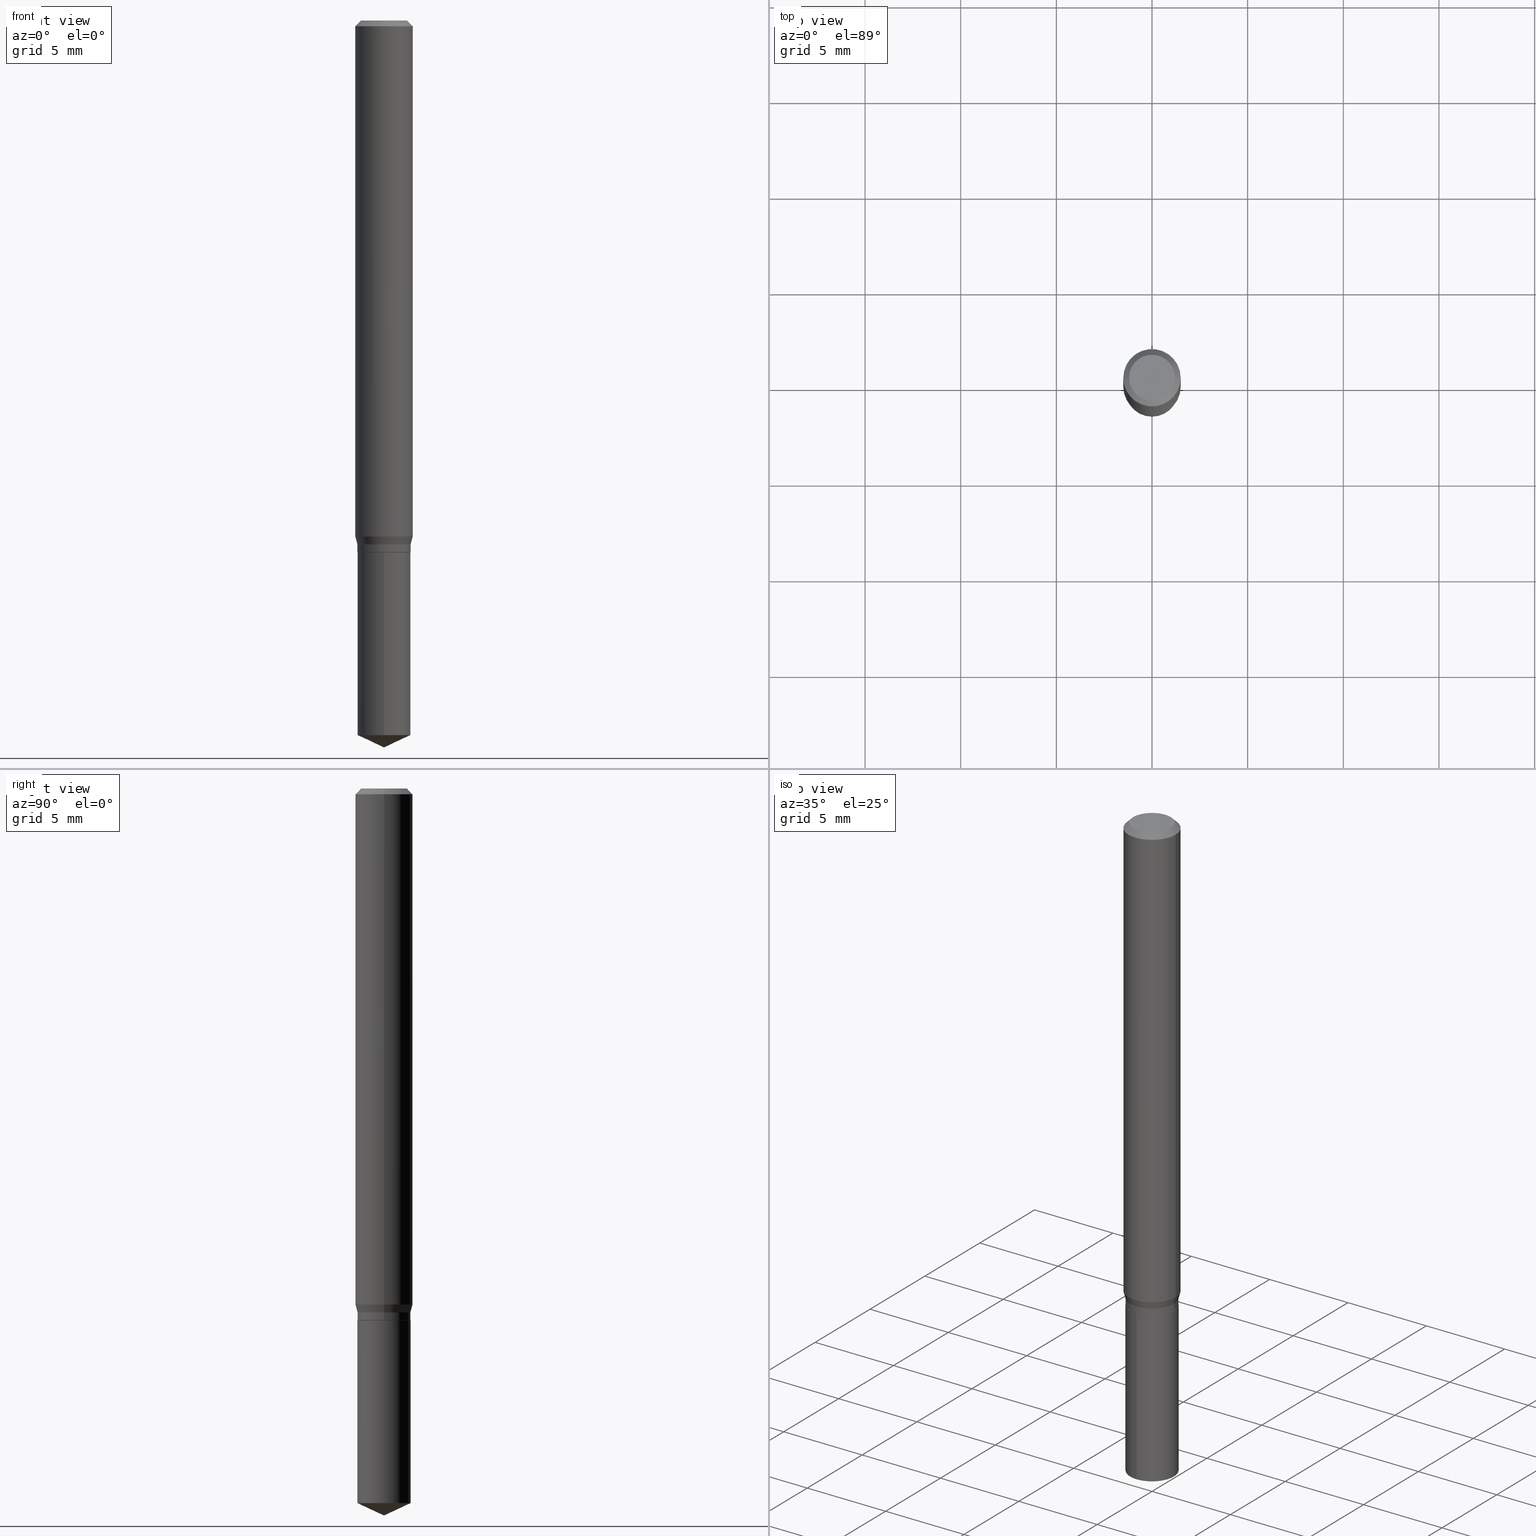
[diagram: canonical four-view strip — front | top / right | iso, engineering-drawing reading convention]
A machine part, canonical four-view strip (front | top / right | iso — engineering-drawing reading convention). The complete STEP part file that produces these views, byte-faithful:
ISO-10303-21;
HEADER;
FILE_DESCRIPTION (( 'STEP AP203' ),
    '1' );
FILE_NAME ('07694.STEP',
    '2024-04-24T01:11:04',
    ( '' ),
    ( '' ),
    'SwSTEP 2.0',
    'SolidWorks 2023',
    '' );
FILE_SCHEMA (( 'CONFIG_CONTROL_DESIGN' ));
ENDSEC;

DATA;
#1 = APPLICATION_PROTOCOL_DEFINITION ( 'international standard', 'config_control_design', 1994, #245 ) ;
#2 = VECTOR ( 'NONE', #459, 39.37007874015748143 ) ;
#3 = AXIS2_PLACEMENT_3D ( 'NONE', #294, #446, #60 ) ;
#4 = CONICAL_SURFACE ( 'NONE', #452, 0.05419999999999999818, 0.7853981633975507526 ) ;
#5 = CARTESIAN_POINT ( 'NONE',  ( 0.000000000000000000, 0.000000000000000000, 0.000000000000000000 ) ) ;
#6 = EDGE_CURVE ( 'NONE', #477, #176, #334, .T. ) ;
#7 = ORIENTED_EDGE ( 'NONE', *, *, #341, .F. ) ;
#8 = PERSON_AND_ORGANIZATION ( #411, #58 ) ;
#9 = DIRECTION ( 'NONE',  ( -0.7071067811865453523, 2.468850131082234184E-15, -0.7071067811865496822 ) ) ;
#10 = EDGE_LOOP ( 'NONE', ( #20, #67, #137, #292 ) ) ;
#11 = APPROVAL ( #112, 'UNSPECIFIED' ) ;
#12 = MANIFOLD_SOLID_BREP ( 'Body-Move/Copy2[1]', #301 ) ;
#13 = DIRECTION ( 'NONE',  ( -6.982962677686266711E-15, -1.000000000000000000, 3.520397390770459392E-15 ) ) ;
#14 = ORIENTED_EDGE ( 'NONE', *, *, #352, .F. ) ;
#15 = SECURITY_CLASSIFICATION_LEVEL ( 'unclassified' ) ;
#16 = EDGE_CURVE ( 'NONE', #114, #124, #158, .T. ) ;
#17 = AXIS2_PLACEMENT_3D ( 'NONE', #175, #34, #476 ) ;
#18 = CARTESIAN_POINT ( 'NONE',  ( 3.886668764608105865E-16, 0.05469999999999484996, -1.470592971098921842 ) ) ;
#19 = LOCAL_TIME ( 21, 11, 4.000000000000000000, #309 ) ;
#20 = ORIENTED_EDGE ( 'NONE', *, *, #115, .T. ) ;
#21 = ADVANCED_FACE ( 'NONE', ( #84 ), #81, .T. ) ;
#22 = APPROVAL ( #464, 'UNSPECIFIED' ) ;
#23 = CIRCLE ( 'NONE', #303, 0.05469999999999999862 ) ;
#24 = FACE_OUTER_BOUND ( 'NONE', #238, .T. ) ;
#25 = EDGE_CURVE ( 'NONE', #106, #99, #50, .T. ) ;
#26 = CIRCLE ( 'NONE', #111, 0.04724000000000000421 ) ;
#27 = CARTESIAN_POINT ( 'NONE',  ( 2.888098660104664204E-31, -4.123439461173780263E-17, -0.01181000000000007218 ) ) ;
#28 = CONICAL_SURFACE ( 'NONE', #95, 0.05419999999999999818, 0.7853981633975507526 ) ;
#29 = CARTESIAN_POINT ( 'NONE',  ( 2.676565608369631794E-29, -3.821426325363822773E-15, -1.094499999999999806 ) ) ;
#30 = ORIENTED_EDGE ( 'NONE', *, *, #16, .F. ) ;
#31 = FACE_OUTER_BOUND ( 'NONE', #183, .T. ) ;
#32 = ADVANCED_FACE ( 'NONE', ( #194 ), #381, .T. ) ;
#33 = ORIENTED_EDGE ( 'NONE', *, *, #470, .T. ) ;
#34 = DIRECTION ( 'NONE',  ( -2.445458899330790108E-29, 3.491495526022433205E-15, 1.000000000000000000 ) ) ;
#35 = ADVANCED_FACE ( 'NONE', ( #59 ), #244, .F. ) ;
#36 = DATE_TIME_ROLE ( 'classification_date' ) ;
#37 = LINE ( 'NONE', #298, #210 ) ;
#38 = EDGE_LOOP ( 'NONE', ( #448, #463, #279, #272 ) ) ;
#39 = LINE ( 'NONE', #388, #180 ) ;
#40 = ORIENTED_EDGE ( 'NONE', *, *, #103, .F. ) ;
#41 = COORDINATED_UNIVERSAL_TIME_OFFSET ( 5, 0, .BEHIND. ) ;
#42 = CARTESIAN_POINT ( 'NONE',  ( 3.886668764608106358E-16, 0.05469999999999616835, -1.094500000000000028 ) ) ;
#43 = ORIENTED_EDGE ( 'NONE', *, *, #45, .T. ) ;
#44 = VECTOR ( 'NONE', #398, 39.37007874015748143 ) ;
#45 = EDGE_CURVE ( 'NONE', #176, #106, #169, .T. ) ;
#46 = CARTESIAN_POINT ( 'NONE',  ( -0.05419999999999999818, -3.436312162581847894E-15, -1.094499999999999806 ) ) ;
#47 = EDGE_LOOP ( 'NONE', ( #77, #339, #429, #161 ) ) ;
#48 = DATE_AND_TIME ( #109, #252 ) ;
#49 = DIRECTION ( 'NONE',  ( -2.445458899330790108E-29, 3.491495526022433599E-15, 1.000000000000000000 ) ) ;
#50 = LINE ( 'NONE', #120, #70 ) ;
#51 = PERSON_AND_ORGANIZATION ( #411, #58 ) ;
#52 = CARTESIAN_POINT ( 'NONE',  ( 3.658672935554494692E-29, -5.223595400746700193E-15, -1.496099999999999985 ) ) ;
#53 = ORIENTED_EDGE ( 'NONE', *, *, #402, .T. ) ;
#54 = CALENDAR_DATE ( 2024, 23, 4 ) ;
#55 = EDGE_CURVE ( 'NONE', #373, #351, #440, .T. ) ;
#56 = AXIS2_PLACEMENT_3D ( 'NONE', #443, #100, #404 ) ;
#57 = CONICAL_SURFACE ( 'NONE', #397, 0.05904999999999999832, 0.7853981633974452814 ) ;
#58 = ORGANIZATION ( 'UNSPECIFIED', 'UNSPECIFIED', '' ) ;
#59 = FACE_OUTER_BOUND ( 'NONE', #313, .T. ) ;
#60 = DIRECTION ( 'NONE',  ( 1.000000000000000000, -6.982962677686265133E-15, 0.000000000000000000 ) ) ;
#61 = CARTESIAN_POINT ( 'NONE',  ( 2.636459919948195417E-29, -3.764166031406795090E-15, -1.078099999999999836 ) ) ;
#62 = CONICAL_SURFACE ( 'NONE', #230, 84.42940631927420725, 1.134464013796315340 ) ;
#63 = VERTEX_POINT ( 'NONE', #132 ) ;
#64 = CARTESIAN_POINT ( 'NONE',  ( 0.05469999999999999862, -4.201648643163839661E-15, -1.093999999999999861 ) ) ;
#65 = ORIENTED_EDGE ( 'NONE', *, *, #130, .F. ) ;
#66 = CARTESIAN_POINT ( 'NONE',  ( -0.05469999999999999862, 3.886668764607747919E-16, -2.690657494369433708E-30 ) ) ;
#67 = ORIENTED_EDGE ( 'NONE', *, *, #55, .T. ) ;
#68 = CARTESIAN_POINT ( 'NONE',  ( 0.000000000000000000, 0.000000000000000000, 0.000000000000000000 ) ) ;
#69 = ORIENTED_EDGE ( 'NONE', *, *, #280, .F. ) ;
#70 = VECTOR ( 'NONE', #224, 39.37007874015748143 ) ;
#71 =( CONVERSION_BASED_UNIT ( 'INCH', #261 ) LENGTH_UNIT ( ) NAMED_UNIT ( #379 ) );
#72 = CARTESIAN_POINT ( 'NONE',  ( 8.265746106709734507E-48, -1.180129479067563789E-33, -3.380025165646692144E-19 ) ) ;
#73 = PERSON_AND_ORGANIZATION_ROLE ( 'classification_officer' ) ;
#74 = EDGE_CURVE ( 'NONE', #460, #490, #433, .T. ) ;
#75 = PERSON_AND_ORGANIZATION ( #411, #58 ) ;
#76 = LINE ( 'NONE', #157, #347 ) ;
#77 = ORIENTED_EDGE ( 'NONE', *, *, #484, .F. ) ;
#78 = PERSON_AND_ORGANIZATION_ROLE ( 'design_owner' ) ;
#79 = EDGE_CURVE ( 'NONE', #289, #358, #394, .T. ) ;
#80 = DIRECTION ( 'NONE',  ( -2.445468806185136597E-29, 3.491481338843145583E-15, 1.000000000000000000 ) ) ;
#81 = CYLINDRICAL_SURFACE ( 'NONE', #284, 0.05469999999999999862 ) ;
#82 = VECTOR ( 'NONE', #322, 39.37007874015748143 ) ;
#83 = CARTESIAN_POINT ( 'NONE',  ( -3.819680584694119646E-16, -0.05470000000000382195, -1.094499999999999806 ) ) ;
#84 = FACE_OUTER_BOUND ( 'NONE', #108, .T. ) ;
#85 = PERSON_AND_ORGANIZATION_ROLE ( 'creator' ) ;
#86 = LINE ( 'NONE', #46, #2 ) ;
#87 = ADVANCED_FACE ( 'NONE', ( #24 ), #473, .F. ) ;
#88 = PERSON_AND_ORGANIZATION_ROLE ( 'creator' ) ;
#89 = ORIENTED_EDGE ( 'NONE', *, *, #25, .F. ) ;
#90 = CONICAL_SURFACE ( 'NONE', #401, 0.05469999999999999862, 0.2617993877991506291 ) ;
#91 = PRODUCT_DEFINITION_FORMATION_WITH_SPECIFIED_SOURCE ( 'ANY', '', #155, .NOT_KNOWN. ) ;
#92 = CARTESIAN_POINT ( 'NONE',  ( 4.602682922000797681E-29, -1.063116704454656126E-15, -1.094499999999999806 ) ) ;
#93 = CARTESIAN_POINT ( 'NONE',  ( -0.05419999999999999818, -3.433662935407737087E-15, -1.094499999999999806 ) ) ;
#94 = CARTESIAN_POINT ( 'NONE',  ( 2.676565608369631794E-29, -3.821426325363822773E-15, -1.094499999999999806 ) ) ;
#95 = AXIS2_PLACEMENT_3D ( 'NONE', #336, #409, #479 ) ;
#96 = CARTESIAN_POINT ( 'NONE',  ( 0.05469999999999999862, -3.819680584694387859E-16, 2.667268696360376954E-30 ) ) ;
#97 = LOCAL_TIME ( 21, 11, 4.000000000000000000, #118 ) ;
#98 = FACE_OUTER_BOUND ( 'NONE', #405, .T. ) ;
#99 = VERTEX_POINT ( 'NONE', #287 ) ;
#100 = DIRECTION ( 'NONE',  ( -2.445458899330790108E-29, 3.491495526022433205E-15, 1.000000000000000000 ) ) ;
#101 = CIRCLE ( 'NONE', #438, 0.05469999999999999862 ) ;
#102 = ORIENTED_EDGE ( 'NONE', *, *, #420, .T. ) ;
#103 = EDGE_CURVE ( 'NONE', #176, #477, #101, .T. ) ;
#104 = CARTESIAN_POINT ( 'NONE',  ( 2.888098660104664204E-31, -4.123439461173780263E-17, -0.01181000000000007218 ) ) ;
#105 = CARTESIAN_POINT ( 'NONE',  ( 0.05419999999999999818, -4.199902902494418158E-15, -1.094499999999999806 ) ) ;
#106 = VERTEX_POINT ( 'NONE', #177 ) ;
#107 = DIRECTION ( 'NONE',  ( -2.445468806185136597E-29, 3.491481338843145583E-15, 1.000000000000000000 ) ) ;
#108 = EDGE_LOOP ( 'NONE', ( #232, #392, #454, #221 ) ) ;
#109 = CALENDAR_DATE ( 2024, 23, 4 ) ;
#110 = AXIS2_PLACEMENT_3D ( 'NONE', #92, #323, #203 ) ;
#111 = AXIS2_PLACEMENT_3D ( 'NONE', #72, #154, #113 ) ;
#112 = APPROVAL_STATUS ( 'not_yet_approved' ) ;
#113 = DIRECTION ( 'NONE',  ( 1.000000000000000000, -6.982962677686266711E-15, 4.876185090822587894E-29 ) ) ;
#114 = VERTEX_POINT ( 'NONE', #248 ) ;
#115 = EDGE_CURVE ( 'NONE', #99, #373, #172, .T. ) ;
#116 = CARTESIAN_POINT ( 'NONE',  ( -0.05904999999999999832, -1.454783638536150538E-15, -0.01181000000000007218 ) ) ;
#117 = DIRECTION ( 'NONE',  ( -2.445468806185136597E-29, 3.491481338843145583E-15, 1.000000000000000000 ) ) ;
#118 = COORDINATED_UNIVERSAL_TIME_OFFSET ( 5, 0, .BEHIND. ) ;
#119 = FACE_OUTER_BOUND ( 'NONE', #343, .T. ) ;
#120 = CARTESIAN_POINT ( 'NONE',  ( 0.05469999999999999862, -4.146134089876233481E-15, -1.078099999999999836 ) ) ;
#121 = APPROVAL_DATE_TIME ( #425, #290 ) ;
#122 = VECTOR ( 'NONE', #231, 39.37007874015748143 ) ;
#123 = DIRECTION ( 'NONE',  ( -2.445458899330790108E-29, 3.491495526022433205E-15, 1.000000000000000000 ) ) ;
#124 = VERTEX_POINT ( 'NONE', #258 ) ;
#125 = PERSON_AND_ORGANIZATION_ROLE ( 'design_supplier' ) ;
#126 = CARTESIAN_POINT ( 'NONE',  ( 2.676565608369631794E-29, -3.821426325363822773E-15, -1.094499999999999806 ) ) ;
#127 = CIRCLE ( 'NONE', #273, 0.05419999999999999818 ) ;
#128 = CARTESIAN_POINT ( 'NONE',  ( -0.05469999999999999862, -3.403256431589823191E-15, -1.093999999999999861 ) ) ;
#129 = APPROVAL_PERSON_ORGANIZATION ( #75, #11, #406 ) ;
#130 = EDGE_CURVE ( 'NONE', #442, #408, #421, .T. ) ;
#131 = CARTESIAN_POINT ( 'NONE',  ( 8.265746106709734507E-48, -1.180129479067563789E-33, -3.380025165646692144E-19 ) ) ;
#132 = CARTESIAN_POINT ( 'NONE',  ( -0.05469999999999999862, -3.403256431589823191E-15, -1.078099999999999836 ) ) ;
#133 = APPLICATION_CONTEXT ( 'configuration controlled 3d designs of mechanical parts and assemblies' ) ;
#134 = CIRCLE ( 'NONE', #3, 0.05905000000000013016 ) ;
#135 = DIRECTION ( 'NONE',  ( -2.445468806185136597E-29, 3.491481338843145583E-15, 1.000000000000000000 ) ) ;
#136 = DIRECTION ( 'NONE',  ( -2.445458899330790108E-29, 3.491495526022433205E-15, 1.000000000000000000 ) ) ;
#137 = ORIENTED_EDGE ( 'NONE', *, *, #324, .F. ) ;
#138 = ADVANCED_BREP_SHAPE_REPRESENTATION ( '07694', ( #12, #483, #431 ), #462 ) ;
#139 = FACE_OUTER_BOUND ( 'NONE', #457, .T. ) ;
#140 = ORIENTED_EDGE ( 'NONE', *, *, #435, .T. ) ;
#141 = ADVANCED_FACE ( 'NONE', ( #139 ), #486, .F. ) ;
#142 = DIRECTION ( 'NONE',  ( 1.000000000000000000, -6.982962677686269866E-15, 0.000000000000000000 ) ) ;
#143 = CIRCLE ( 'NONE', #152, 0.05904999999999999832 ) ;
#144 = EDGE_LOOP ( 'NONE', ( #393, #332, #43, #149 ) ) ;
#145 = DIRECTION ( 'NONE',  ( 1.000000000000000000, -6.982962677686269866E-15, 0.000000000000000000 ) ) ;
#146 = ORIENTED_EDGE ( 'NONE', *, *, #74, .T. ) ;
#147 = ADVANCED_FACE ( 'NONE', ( #338 ), #90, .T. ) ;
#148 = CARTESIAN_POINT ( 'NONE',  ( 2.636459919948195417E-29, -3.764166031406795090E-15, -1.078099999999999836 ) ) ;
#149 = ORIENTED_EDGE ( 'NONE', *, *, #226, .F. ) ;
#150 = DIRECTION ( 'NONE',  ( -2.445468806185136597E-29, 3.491481338843145583E-15, 1.000000000000000000 ) ) ;
#151 = ORIENTED_EDGE ( 'NONE', *, *, #280, .T. ) ;
#152 = AXIS2_PLACEMENT_3D ( 'NONE', #27, #173, #328 ) ;
#153 = CC_DESIGN_APPROVAL ( #11, ( #386 ) ) ;
#154 = DIRECTION ( 'NONE',  ( -2.445468806185136597E-29, 3.491481338843145583E-15, 1.000000000000000000 ) ) ;
#155 = PRODUCT ( '07694', '07694', '', ( #390 ) ) ;
#156 = DIRECTION ( 'NONE',  ( -2.445468806185136597E-29, 3.491481338843145583E-15, 1.000000000000000000 ) ) ;
#157 = CARTESIAN_POINT ( 'NONE',  ( -0.05469999999999999862, -3.375499154946020101E-15, -1.078099999999999836 ) ) ;
#158 = LINE ( 'NONE', #188, #162 ) ;
#159 = APPLICATION_PROTOCOL_DEFINITION ( 'international standard', 'config_control_design', 1994, #133 ) ;
#160 = DIRECTION ( 'NONE',  ( 1.000000000000000000, -6.982962677686268288E-15, 0.000000000000000000 ) ) ;
#161 = ORIENTED_EDGE ( 'NONE', *, *, #368, .F. ) ;
#162 = VECTOR ( 'NONE', #466, 39.37007874015748143 ) ;
#163 = CC_DESIGN_SECURITY_CLASSIFICATION ( #386, ( #91 ) ) ;
#164 = LINE ( 'NONE', #83, #403 ) ;
#165 = ORIENTED_EDGE ( 'NONE', *, *, #402, .F. ) ;
#166 = DIRECTION ( 'NONE',  ( -2.445468806185136877E-29, 3.491481338843145188E-15, 1.000000000000000000 ) ) ;
#167 = VECTOR ( 'NONE', #166, 39.37007874015748143 ) ;
#168 = AXIS2_PLACEMENT_3D ( 'NONE', #5, #80, #312 ) ;
#169 = LINE ( 'NONE', #96, #167 ) ;
#170 = CC_DESIGN_PERSON_AND_ORGANIZATION_ASSIGNMENT ( #413, #73, ( #386 ) ) ;
#171 = DIRECTION ( 'NONE',  ( 2.438088387897960049E-29, -3.491481338843145188E-15, -1.000000000000000000 ) ) ;
#172 = CIRCLE ( 'NONE', #385, 0.05905000000000013016 ) ;
#173 = DIRECTION ( 'NONE',  ( -2.445468806185136597E-29, 3.491481338843145583E-15, 1.000000000000000000 ) ) ;
#174 = APPROVAL_PERSON_ORGANIZATION ( #269, #22, #233 ) ;
#175 = CARTESIAN_POINT ( 'NONE',  ( 2.676565608369631794E-29, -3.821426325363822773E-15, -1.094499999999999806 ) ) ;
#176 = VERTEX_POINT ( 'NONE', #64 ) ;
#177 = CARTESIAN_POINT ( 'NONE',  ( 0.05469999999999999862, -4.146134089876233481E-15, -1.078099999999999836 ) ) ;
#178 = ORIENTED_EDGE ( 'NONE', *, *, #25, .T. ) ;
#179 = FACE_OUTER_BOUND ( 'NONE', #38, .T. ) ;
#180 = VECTOR ( 'NONE', #9, 39.37007874015748143 ) ;
#181 = ORIENTED_EDGE ( 'NONE', *, *, #115, .F. ) ;
#182 = DIRECTION ( 'NONE',  ( -2.445468806185136597E-29, 3.491481338843145583E-15, 1.000000000000000000 ) ) ;
#183 = EDGE_LOOP ( 'NONE', ( #410, #451, #140, #370 ) ) ;
#184 = ADVANCED_FACE ( 'NONE', ( #31 ), #450, .T. ) ;
#185 = CARTESIAN_POINT ( 'NONE',  ( -9.261924752013118283E-28, 1.322368428517963298E-13, 37.87397874015748300 ) ) ;
#186 = ORIENTED_EDGE ( 'NONE', *, *, #257, .T. ) ;
#187 = CARTESIAN_POINT ( 'NONE',  ( 0.05905000000000006771, -4.123439461173745257E-16, 2.879382386107503723E-30 ) ) ;
#188 = CARTESIAN_POINT ( 'NONE',  ( 0.05904999999999999832, -4.463468013801466955E-16, -0.01181000000000007218 ) ) ;
#189 = CIRCLE ( 'NONE', #480, 0.05904999999999999832 ) ;
#190 = FACE_OUTER_BOUND ( 'NONE', #218, .T. ) ;
#191 = ADVANCED_FACE ( 'NONE', ( #179 ), #369, .T. ) ;
#192 = ORIENTED_EDGE ( 'NONE', *, *, #201, .F. ) ;
#193 = LINE ( 'NONE', #52, #468 ) ;
#194 = FACE_OUTER_BOUND ( 'NONE', #253, .T. ) ;
#195 = PERSON_AND_ORGANIZATION ( #411, #58 ) ;
#196 = CC_DESIGN_PERSON_AND_ORGANIZATION_ASSIGNMENT ( #355, #125, ( #91 ) ) ;
#197 = DIRECTION ( 'NONE',  ( -2.445468806185136597E-29, 3.491481338843145583E-15, 1.000000000000000000 ) ) ;
#198 = DIRECTION ( 'NONE',  ( 1.000000000000000000, -6.982962677686269866E-15, 0.000000000000000000 ) ) ;
#199 = DATE_AND_TIME ( #54, #97 ) ;
#200 = AXIS2_PLACEMENT_3D ( 'NONE', #255, #482, #145 ) ;
#201 = EDGE_CURVE ( 'NONE', #408, #442, #217, .T. ) ;
#202 = CC_DESIGN_PERSON_AND_ORGANIZATION_ASSIGNMENT ( #274, #88, ( #314 ) ) ;
#203 = DIRECTION ( 'NONE',  ( 1.000000000000000000, -6.982962677686265922E-15, 4.876176775795935793E-29 ) ) ;
#204 = CIRCLE ( 'NONE', #239, 0.04724000000000000421 ) ;
#205 = ADVANCED_FACE ( 'NONE', ( #331 ), #28, .T. ) ;
#206 = CARTESIAN_POINT ( 'NONE',  ( 2.676565608369631234E-29, -3.821426325363821984E-15, -1.094499999999999806 ) ) ;
#207 = DIRECTION ( 'NONE',  ( -6.328713451373372534E-15, -0.9063077870366488265, 0.4226182617407016062 ) ) ;
#208 = CC_DESIGN_APPROVAL ( #22, ( #91 ) ) ;
#209 = EDGE_CURVE ( 'NONE', #477, #63, #407, .T. ) ;
#210 = VECTOR ( 'NONE', #207, 39.37007874015748143 ) ;
#211 = DIRECTION ( 'NONE',  ( -2.445468806185136597E-29, 3.491481338843145583E-15, 1.000000000000000000 ) ) ;
#212 = EDGE_LOOP ( 'NONE', ( #424, #377, #181, #89 ) ) ;
#213 = DIRECTION ( 'NONE',  ( -2.445468806185136597E-29, 3.491481338843145583E-15, 1.000000000000000000 ) ) ;
#214 = EDGE_LOOP ( 'NONE', ( #146, #102, #40, #256 ) ) ;
#215 = FACE_OUTER_BOUND ( 'NONE', #444, .T. ) ;
#216 = DIRECTION ( 'NONE',  ( 2.445468806185136597E-29, -3.491481338843145583E-15, -1.000000000000000000 ) ) ;
#217 = CIRCLE ( 'NONE', #56, 0.05469999999999999862 ) ;
#218 = EDGE_LOOP ( 'NONE', ( #427, #418, #186, #400 ) ) ;
#219 = COORDINATED_UNIVERSAL_TIME_OFFSET ( 5, 0, .BEHIND. ) ;
#220 = CARTESIAN_POINT ( 'NONE',  ( -3.819680584694026955E-16, -0.05470000000000511259, -1.470592971098921398 ) ) ;
#221 = ORIENTED_EDGE ( 'NONE', *, *, #435, .F. ) ;
#222 =( NAMED_UNIT ( * ) SI_UNIT ( $, .STERADIAN. ) SOLID_ANGLE_UNIT ( ) );
#223 = CARTESIAN_POINT ( 'NONE',  ( 3.658651059288794515E-29, -5.223626456482161457E-15, -1.496099999999999985 ) ) ;
#224 = DIRECTION ( 'NONE',  ( 0.2588190451025219052, 1.565188264969617826E-15, 0.9659258262890679791 ) ) ;
#225 = APPROVAL_STATUS ( 'not_yet_approved' ) ;
#226 = EDGE_CURVE ( 'NONE', #63, #106, #23, .T. ) ;
#227 = CYLINDRICAL_SURFACE ( 'NONE', #168, 0.05905000000000006771 ) ;
#228 = ORIENTED_EDGE ( 'NONE', *, *, #368, .T. ) ;
#229 = DIRECTION ( 'NONE',  ( 1.000000000000000000, 0.000000000000000000, 0.000000000000000000 ) ) ;
#230 = AXIS2_PLACEMENT_3D ( 'NONE', #315, #302, #13 ) ;
#231 = DIRECTION ( 'NONE',  ( -2.445468806185136877E-29, 3.491481338843145188E-15, 1.000000000000000000 ) ) ;
#232 = ORIENTED_EDGE ( 'NONE', *, *, #201, .T. ) ;
#233 = APPROVAL_ROLE ( '' ) ;
#234 = CARTESIAN_POINT ( 'NONE',  ( 2.888098660104664204E-31, -4.123439461173780263E-17, -0.01181000000000007218 ) ) ;
#235 = VERTEX_POINT ( 'NONE', #363 ) ;
#236 = EDGE_CURVE ( 'NONE', #373, #99, #134, .T. ) ;
#237 = CARTESIAN_POINT ( 'NONE',  ( 0.000000000000000000, 0.000000000000000000, 0.000000000000000000 ) ) ;
#238 = EDGE_LOOP ( 'NONE', ( #53, #306 ) ) ;
#239 = AXIS2_PLACEMENT_3D ( 'NONE', #131, #471, #436 ) ;
#240 = CLOSED_SHELL ( 'NONE', ( #205, #345, #383, #147, #32, #449, #434, #191, #247, #87, #35, #430 ) ) ;
#241 = AXIS2_PLACEMENT_3D ( 'NONE', #206, #432, #281 ) ;
#242 = CARTESIAN_POINT ( 'NONE',  ( 2.675342873966538993E-29, -3.819680584694400481E-15, -1.093999999999999861 ) ) ;
#243 = DIRECTION ( 'NONE',  ( -6.982962677686265922E-15, -1.000000000000000000, 2.497118824190368439E-15 ) ) ;
#244 = PLANE ( 'NONE',  #110 ) ;
#245 = APPLICATION_CONTEXT ( 'configuration controlled 3d designs of mechanical parts and assemblies' ) ;
#246 = VECTOR ( 'NONE', #310, 39.37007874015748143 ) ;
#247 = ADVANCED_FACE ( 'NONE', ( #215 ), #423, .T. ) ;
#248 = CARTESIAN_POINT ( 'NONE',  ( 0.04724000000000000421, -3.852183633974369345E-16, -3.380025165621689721E-19 ) ) ;
#249 = ORIENTED_EDGE ( 'NONE', *, *, #236, .F. ) ;
#250 = AXIS2_PLACEMENT_3D ( 'NONE', #268, #117, #198 ) ;
#251 = DIRECTION ( 'NONE',  ( 1.000000000000000000, -6.982962677686269866E-15, 0.000000000000000000 ) ) ;
#252 = LOCAL_TIME ( 21, 11, 4.000000000000000000, #419 ) ;
#253 = EDGE_LOOP ( 'NONE', ( #387, #277, #487, #295 ) ) ;
#254 = EDGE_CURVE ( 'NONE', #106, #63, #320, .T. ) ;
#255 = CARTESIAN_POINT ( 'NONE',  ( 2.636459919948195417E-29, -3.764166031406795090E-15, -1.078099999999999836 ) ) ;
#256 = ORIENTED_EDGE ( 'NONE', *, *, #257, .F. ) ;
#257 = EDGE_CURVE ( 'NONE', #460, #176, #376, .T. ) ;
#258 = CARTESIAN_POINT ( 'NONE',  ( 0.05904999999999999832, -4.535783407291118600E-16, -0.01181000000000007218 ) ) ;
#259 = PRODUCT_DEFINITION_SHAPE ( 'NONE', 'NONE',  #314 ) ;
#260 = EDGE_LOOP ( 'NONE', ( #14, #151, #65 ) ) ;
#261 = LENGTH_MEASURE_WITH_UNIT ( LENGTH_MEASURE( 0.02539999999999999897 ), #485 );
#262 = FACE_OUTER_BOUND ( 'NONE', #144, .T. ) ;
#263 = CIRCLE ( 'NONE', #481, 0.05469999999999999862 ) ;
#264 = APPROVAL_DATE_TIME ( #455, #11 ) ;
#265 = DIRECTION ( 'NONE',  ( -2.445468806185136597E-29, 3.491481338843145583E-15, 1.000000000000000000 ) ) ;
#266 = DIRECTION ( 'NONE',  ( -2.445458899330790108E-29, 3.491495526022433205E-15, 1.000000000000000000 ) ) ;
#267 = CARTESIAN_POINT ( 'NONE',  ( 3.886668764608015146E-16, 0.05469999999999617529, -1.094500000000000028 ) ) ;
#268 = CARTESIAN_POINT ( 'NONE',  ( 2.675342873966538993E-29, -3.819680584694400481E-15, -1.093999999999999861 ) ) ;
#269 = PERSON_AND_ORGANIZATION ( #411, #58 ) ;
#270 = DIRECTION ( 'NONE',  ( -2.445468806185136597E-29, 3.491481338843145583E-15, 1.000000000000000000 ) ) ;
#271 = CC_DESIGN_DATE_AND_TIME_ASSIGNMENT ( #371, #36, ( #386 ) ) ;
#272 = ORIENTED_EDGE ( 'NONE', *, *, #286, .F. ) ;
#273 = AXIS2_PLACEMENT_3D ( 'NONE', #412, #461, #160 ) ;
#274 = PERSON_AND_ORGANIZATION ( #411, #58 ) ;
#275 = LOCAL_TIME ( 21, 11, 4.000000000000000000, #219 ) ;
#276 = LINE ( 'NONE', #267, #246 ) ;
#277 = ORIENTED_EDGE ( 'NONE', *, *, #209, .T. ) ;
#278 = DIRECTION ( 'NONE',  ( 0.000000000000000000, 0.000000000000000000, 1.000000000000000000 ) ) ;
#279 = ORIENTED_EDGE ( 'NONE', *, *, #333, .T. ) ;
#280 = EDGE_CURVE ( 'NONE', #311, #408, #37, .T. ) ;
#281 = DIRECTION ( 'NONE',  ( 1.000000000000000000, -6.982962677686268288E-15, 0.000000000000000000 ) ) ;
#282 = CARTESIAN_POINT ( 'NONE',  ( -0.05905000000000006771, 4.195754854663396409E-16, -2.904631170795525045E-30 ) ) ;
#283 = CC_DESIGN_DATE_AND_TIME_ASSIGNMENT ( #199, #300, ( #314 ) ) ;
#284 = AXIS2_PLACEMENT_3D ( 'NONE', #126, #266, #416 ) ;
#285 = LOCAL_TIME ( 21, 11, 4.000000000000000000, #41 ) ;
#286 = EDGE_CURVE ( 'NONE', #351, #124, #143, .T. ) ;
#287 = CARTESIAN_POINT ( 'NONE',  ( 0.05905000000000013016, -4.119827799510619225E-15, -1.061865578987074787 ) ) ;
#288 = DIRECTION ( 'NONE',  ( 0.7071067811866199593, -2.468850131083015945E-15, 0.7071067811864750752 ) ) ;
#289 = VERTEX_POINT ( 'NONE', #441 ) ;
#290 = APPROVAL ( #225, 'UNSPECIFIED' ) ;
#291 = DIRECTION ( 'NONE',  ( 1.000000000000000000, -6.982962677686266711E-15, 4.876176775795936353E-29 ) ) ;
#292 = ORIENTED_EDGE ( 'NONE', *, *, #333, .F. ) ;
#293 = AXIS2_PLACEMENT_3D ( 'NONE', #68, #107, #291 ) ;
#294 = CARTESIAN_POINT ( 'NONE',  ( 2.596759149774611245E-29, -3.707483853393244305E-15, -1.061865578987074787 ) ) ;
#295 = ORIENTED_EDGE ( 'NONE', *, *, #45, .F. ) ;
#296 = DIRECTION ( 'NONE',  ( 1.000000000000000000, -6.982962677686265133E-15, 0.000000000000000000 ) ) ;
#297 = CALENDAR_DATE ( 2024, 23, 4 ) ;
#298 = CARTESIAN_POINT ( 'NONE',  ( 3.658651059288795076E-29, -5.223626456482161457E-15, -1.496099999999999985 ) ) ;
#299 = ORIENTED_EDGE ( 'NONE', *, *, #352, .T. ) ;
#300 = DATE_TIME_ROLE ( 'creation_date' ) ;
#301 = CLOSED_SHELL ( 'NONE', ( #21, #304, #437, #184, #141 ) ) ;
#302 = DIRECTION ( 'NONE',  ( -2.445458899330790108E-29, 3.491495526022433205E-15, 1.000000000000000000 ) ) ;
#303 = AXIS2_PLACEMENT_3D ( 'NONE', #148, #182, #142 ) ;
#304 = ADVANCED_FACE ( 'NONE', ( #98 ), #62, .T. ) ;
#305 = CC_DESIGN_APPROVAL ( #290, ( #314 ) ) ;
#306 = ORIENTED_EDGE ( 'NONE', *, *, #484, .T. ) ;
#307 = CARTESIAN_POINT ( 'NONE',  ( 2.636459919948195417E-29, -3.764166031406795090E-15, -1.078099999999999836 ) ) ;
#308 = DIRECTION ( 'NONE',  ( 1.000000000000000000, -6.982962677686266711E-15, 4.876176775795935793E-29 ) ) ;
#309 = COORDINATED_UNIVERSAL_TIME_OFFSET ( 5, 0, .BEHIND. ) ;
#310 = DIRECTION ( 'NONE',  ( -2.445458899330790108E-29, 3.491495526022433599E-15, 1.000000000000000000 ) ) ;
#311 = VERTEX_POINT ( 'NONE', #223 ) ;
#312 = DIRECTION ( 'NONE',  ( 1.000000000000000000, -6.982962677686266711E-15, 4.876176775795936353E-29 ) ) ;
#313 = EDGE_LOOP ( 'NONE', ( #337, #7 ) ) ;
#314 = PRODUCT_DEFINITION ( 'UNKNOWN', '', #91, #340 ) ;
#315 = CARTESIAN_POINT ( 'NONE',  ( -9.261924752013118283E-28, 1.322368428517963298E-13, 37.87397874015748300 ) ) ;
#316 = ORIENTED_EDGE ( 'NONE', *, *, #319, .F. ) ;
#317 = UNCERTAINTY_MEASURE_WITH_UNIT (LENGTH_MEASURE( 1.000000000000000082E-05 ), #71, 'distance_accuracy_value', 'NONE');
#318 = DIRECTION ( 'NONE',  ( 1.000000000000000000, -6.982962677686266711E-15, 4.876176775795935793E-29 ) ) ;
#319 = EDGE_CURVE ( 'NONE', #63, #373, #76, .T. ) ;
#320 = CIRCLE ( 'NONE', #200, 0.05469999999999999862 ) ;
#321 = APPROVAL_PERSON_ORGANIZATION ( #8, #290, #382 ) ;
#322 = DIRECTION ( 'NONE',  ( -2.445468806185136877E-29, 3.491481338843145188E-15, 1.000000000000000000 ) ) ;
#323 = DIRECTION ( 'NONE',  ( -2.438088387897960049E-29, 3.491481338843145188E-15, 1.000000000000000000 ) ) ;
#324 = EDGE_CURVE ( 'NONE', #124, #351, #189, .T. ) ;
#325 = CARTESIAN_POINT ( 'NONE',  ( 0.05419999999999999818, -4.199902902494418158E-15, -1.094499999999999806 ) ) ;
#326 = DIRECTION ( 'NONE',  ( -1.000000000000000000, 6.982962677686265922E-15, -4.876176775795935793E-29 ) ) ;
#327 = AXIS2_PLACEMENT_3D ( 'NONE', #349, #156, #308 ) ;
#328 = DIRECTION ( 'NONE',  ( 1.000000000000000000, -6.982962677686266711E-15, 0.000000000000000000 ) ) ;
#329 = ORIENTED_EDGE ( 'NONE', *, *, #226, .T. ) ;
#330 = DIRECTION ( 'NONE',  ( 2.445458899330789267E-29, -3.491495526022433599E-15, -1.000000000000000000 ) ) ;
#331 = FACE_OUTER_BOUND ( 'NONE', #214, .T. ) ;
#332 = ORIENTED_EDGE ( 'NONE', *, *, #6, .T. ) ;
#333 = EDGE_CURVE ( 'NONE', #99, #124, #465, .T. ) ;
#334 = CIRCLE ( 'NONE', #250, 0.05469999999999999862 ) ;
#335 = AXIS2_PLACEMENT_3D ( 'NONE', #359, #171, #326 ) ;
#336 = CARTESIAN_POINT ( 'NONE',  ( 2.676565608369631234E-29, -3.821426325363821984E-15, -1.094499999999999806 ) ) ;
#337 = ORIENTED_EDGE ( 'NONE', *, *, #74, .F. ) ;
#338 = FACE_OUTER_BOUND ( 'NONE', #212, .T. ) ;
#339 = ORIENTED_EDGE ( 'NONE', *, *, #16, .T. ) ;
#340 = DESIGN_CONTEXT ( 'detailed design', #133, 'design' ) ;
#341 = EDGE_CURVE ( 'NONE', #490, #460, #127, .T. ) ;
#342 = CYLINDRICAL_SURFACE ( 'NONE', #348, 0.05469999999999999862 ) ;
#343 = EDGE_LOOP ( 'NONE', ( #316, #329, #178, #249 ) ) ;
#344 = CALENDAR_DATE ( 2024, 23, 4 ) ;
#345 = ADVANCED_FACE ( 'NONE', ( #346 ), #57, .T. ) ;
#346 = FACE_OUTER_BOUND ( 'NONE', #47, .T. ) ;
#347 = VECTOR ( 'NONE', #415, 39.37007874015748143 ) ;
#348 = AXIS2_PLACEMENT_3D ( 'NONE', #489, #150, #318 ) ;
#349 = CARTESIAN_POINT ( 'NONE',  ( 0.000000000000000000, 0.000000000000000000, 0.000000000000000000 ) ) ;
#350 = DIRECTION ( 'NONE',  ( 1.000000000000000000, -6.982962677686268288E-15, 0.000000000000000000 ) ) ;
#351 = VERTEX_POINT ( 'NONE', #116 ) ;
#352 = EDGE_CURVE ( 'NONE', #311, #442, #193, .T. ) ;
#353 = APPROVAL_DATE_TIME ( #48, #22 ) ;
#354 = FACE_OUTER_BOUND ( 'NONE', #260, .T. ) ;
#355 = PERSON_AND_ORGANIZATION ( #411, #58 ) ;
#356 = CC_DESIGN_PERSON_AND_ORGANIZATION_ASSIGNMENT ( #51, #78, ( #155 ) ) ;
#357 = CARTESIAN_POINT ( 'NONE',  ( -0.05905000000000013016, -3.287908367926904418E-15, -1.061865578987074787 ) ) ;
#358 = VERTEX_POINT ( 'NONE', #42 ) ;
#359 = CARTESIAN_POINT ( 'NONE',  ( 4.132873053354867254E-48, -5.900647395337818946E-34, -1.690012582823346072E-19 ) ) ;
#360 = VECTOR ( 'NONE', #288, 39.37007874015748143 ) ;
#361 = DIRECTION ( 'NONE',  ( -6.982962677686265922E-15, -1.000000000000000000, 2.497118824190368439E-15 ) ) ;
#362 = PRODUCT_RELATED_PRODUCT_CATEGORY ( 'detail', '', ( #155 ) ) ;
#363 = CARTESIAN_POINT ( 'NONE',  ( -0.04724000000000000421, 3.504923541997677355E-16, -3.380025165670481712E-19 ) ) ;
#364 = AXIS2_PLACEMENT_3D ( 'NONE', #366, #136, #399 ) ;
#365 = AXIS2_PLACEMENT_3D ( 'NONE', #307, #270, #422 ) ;
#366 = CARTESIAN_POINT ( 'NONE',  ( 3.596285511519247290E-29, -5.134553251324192159E-15, -1.470592971098921620 ) ) ;
#367 = ORIENTED_EDGE ( 'NONE', *, *, #286, .T. ) ;
#368 = EDGE_CURVE ( 'NONE', #235, #351, #39, .T. ) ;
#369 = CYLINDRICAL_SURFACE ( 'NONE', #293, 0.05905000000000006771 ) ;
#370 = ORIENTED_EDGE ( 'NONE', *, *, #470, .F. ) ;
#371 = DATE_AND_TIME ( #344, #285 ) ;
#372 = DIRECTION ( 'NONE',  ( 6.982962677686265922E-15, 1.000000000000000000, -3.491495526022433599E-15 ) ) ;
#373 = VERTEX_POINT ( 'NONE', #357 ) ;
#374 = AXIS2_PLACEMENT_3D ( 'NONE', #94, #472, #361 ) ;
#375 = CONICAL_SURFACE ( 'NONE', #475, 84.42940631927420725, 1.134464013796315340 ) ;
#376 = LINE ( 'NONE', #105, #360 ) ;
#377 = ORIENTED_EDGE ( 'NONE', *, *, #319, .T. ) ;
#378 = CARTESIAN_POINT ( 'NONE',  ( 2.676565608369631234E-29, -3.821426325363821984E-15, -1.094499999999999806 ) ) ;
#379 = DIMENSIONAL_EXPONENTS ( 1.000000000000000000, 0.000000000000000000, 0.000000000000000000, 0.000000000000000000, 0.000000000000000000, 0.000000000000000000, 0.000000000000000000 ) ;
#380 = DIRECTION ( 'NONE',  ( 6.439704144417027987E-15, 0.9063077870366519351, 0.4226182617406953335 ) ) ;
#381 = CYLINDRICAL_SURFACE ( 'NONE', #327, 0.05469999999999999862 ) ;
#382 = APPROVAL_ROLE ( '' ) ;
#383 = ADVANCED_FACE ( 'NONE', ( #384 ), #227, .T. ) ;
#384 = FACE_OUTER_BOUND ( 'NONE', #10, .T. ) ;
#385 = AXIS2_PLACEMENT_3D ( 'NONE', #478, #213, #296 ) ;
#386 = SECURITY_CLASSIFICATION ( '', '', #15 ) ;
#387 = ORIENTED_EDGE ( 'NONE', *, *, #103, .T. ) ;
#388 = CARTESIAN_POINT ( 'NONE',  ( -0.05904999999999999832, 3.711095515056362547E-16, -0.01181000000000007218 ) ) ;
#389 = ORIENTED_EDGE ( 'NONE', *, *, #79, .T. ) ;
#390 = MECHANICAL_CONTEXT ( 'NONE', #245, 'mechanical' ) ;
#391 = DIRECTION ( 'NONE',  ( -6.982962677686266711E-15, -1.000000000000000000, 3.520397390770459392E-15 ) ) ;
#392 = ORIENTED_EDGE ( 'NONE', *, *, #395, .T. ) ;
#393 = ORIENTED_EDGE ( 'NONE', *, *, #209, .F. ) ;
#394 = CIRCLE ( 'NONE', #374, 0.05469999999999999862 ) ;
#395 = EDGE_CURVE ( 'NONE', #442, #358, #276, .T. ) ;
#396 = DIRECTION ( 'NONE',  ( 1.000000000000000000, -6.982962677686269866E-15, 0.000000000000000000 ) ) ;
#397 = AXIS2_PLACEMENT_3D ( 'NONE', #234, #426, #417 ) ;
#398 = DIRECTION ( 'NONE',  ( -2.445468806185136877E-29, 3.491481338843145188E-15, 1.000000000000000000 ) ) ;
#399 = DIRECTION ( 'NONE',  ( -6.982962677686265922E-15, -1.000000000000000000, 4.994237648380736877E-15 ) ) ;
#400 = ORIENTED_EDGE ( 'NONE', *, *, #6, .F. ) ;
#401 = AXIS2_PLACEMENT_3D ( 'NONE', #61, #211, #251 ) ;
#402 = EDGE_CURVE ( 'NONE', #235, #114, #26, .T. ) ;
#403 = VECTOR ( 'NONE', #49, 39.37007874015748143 ) ;
#404 = DIRECTION ( 'NONE',  ( -6.982962677686265922E-15, -1.000000000000000000, 4.994237648380736877E-15 ) ) ;
#405 = EDGE_LOOP ( 'NONE', ( #69, #299, #192 ) ) ;
#406 = APPROVAL_ROLE ( '' ) ;
#407 = LINE ( 'NONE', #66, #44 ) ;
#408 = VERTEX_POINT ( 'NONE', #220 ) ;
#409 = DIRECTION ( 'NONE',  ( -2.445468806185136597E-29, 3.491481338843145583E-15, 1.000000000000000000 ) ) ;
#410 = ORIENTED_EDGE ( 'NONE', *, *, #395, .F. ) ;
#411 = PERSON ( 'UNSPECIFIED', 'UNSPECIFIED', 'UNSPECIFIED', ('UNSPECIFIED'), ('UNSPECIFIED'), ('UNSPECIFIED') ) ;
#412 = CARTESIAN_POINT ( 'NONE',  ( 2.676565608369631234E-29, -3.821426325363821984E-15, -1.094499999999999806 ) ) ;
#413 = PERSON_AND_ORGANIZATION ( #411, #58 ) ;
#414 = SHAPE_DEFINITION_REPRESENTATION ( #259, #138 ) ;
#415 = DIRECTION ( 'NONE',  ( -0.2588190451025219052, 5.211531920934553408E-15, 0.9659258262890679791 ) ) ;
#416 = DIRECTION ( 'NONE',  ( -6.982962677686265922E-15, -1.000000000000000000, 2.497118824190368439E-15 ) ) ;
#417 = DIRECTION ( 'NONE',  ( -1.000000000000000000, 6.982962677686266711E-15, 0.000000000000000000 ) ) ;
#418 = ORIENTED_EDGE ( 'NONE', *, *, #341, .T. ) ;
#419 = COORDINATED_UNIVERSAL_TIME_OFFSET ( 5, 0, .BEHIND. ) ;
#420 = EDGE_CURVE ( 'NONE', #490, #477, #86, .T. ) ;
#421 = CIRCLE ( 'NONE', #364, 0.05469999999999999862 ) ;
#422 = DIRECTION ( 'NONE',  ( 1.000000000000000000, -6.982962677686269866E-15, 0.000000000000000000 ) ) ;
#423 = CONICAL_SURFACE ( 'NONE', #474, 0.05904999999999999832, 0.7853981633974452814 ) ;
#424 = ORIENTED_EDGE ( 'NONE', *, *, #254, .T. ) ;
#425 = DATE_AND_TIME ( #458, #19 ) ;
#426 = DIRECTION ( 'NONE',  ( 2.445468806185136597E-29, -3.491481338843145583E-15, -1.000000000000000000 ) ) ;
#427 = ORIENTED_EDGE ( 'NONE', *, *, #420, .F. ) ;
#428 = CC_DESIGN_PERSON_AND_ORGANIZATION_ASSIGNMENT ( #195, #85, ( #91 ) ) ;
#429 = ORIENTED_EDGE ( 'NONE', *, *, #324, .T. ) ;
#430 = ADVANCED_FACE ( 'NONE', ( #190 ), #4, .T. ) ;
#431 = AXIS2_PLACEMENT_3D ( 'NONE', #237, #278, #229 ) ;
#432 = DIRECTION ( 'NONE',  ( -2.445468806185136597E-29, 3.491481338843145583E-15, 1.000000000000000000 ) ) ;
#433 = CIRCLE ( 'NONE', #241, 0.05419999999999999818 ) ;
#434 = ADVANCED_FACE ( 'NONE', ( #119 ), #439, .T. ) ;
#435 = EDGE_CURVE ( 'NONE', #408, #289, #164, .T. ) ;
#436 = DIRECTION ( 'NONE',  ( 1.000000000000000000, -6.982962677686266711E-15, 4.876185090822587894E-29 ) ) ;
#437 = ADVANCED_FACE ( 'NONE', ( #354 ), #375, .T. ) ;
#438 = AXIS2_PLACEMENT_3D ( 'NONE', #242, #135, #396 ) ;
#439 = CONICAL_SURFACE ( 'NONE', #365, 0.05469999999999999862, 0.2617993877991506291 ) ;
#440 = LINE ( 'NONE', #282, #82 ) ;
#441 = CARTESIAN_POINT ( 'NONE',  ( -3.819680584694119646E-16, -0.05470000000000382195, -1.094499999999999806 ) ) ;
#442 = VERTEX_POINT ( 'NONE', #18 ) ;
#443 = CARTESIAN_POINT ( 'NONE',  ( 3.596285511519247290E-29, -5.134553251324192159E-15, -1.470592971098921620 ) ) ;
#444 = EDGE_LOOP ( 'NONE', ( #30, #165, #228, #367 ) ) ;
#445 = AXIS2_PLACEMENT_3D ( 'NONE', #29, #330, #372 ) ;
#446 = DIRECTION ( 'NONE',  ( -2.445468806185136597E-29, 3.491481338843145583E-15, 1.000000000000000000 ) ) ;
#447 = DIRECTION ( 'NONE',  ( -1.000000000000000000, 6.982962677686266711E-15, 0.000000000000000000 ) ) ;
#448 = ORIENTED_EDGE ( 'NONE', *, *, #55, .F. ) ;
#449 = ADVANCED_FACE ( 'NONE', ( #262 ), #342, .T. ) ;
#450 = CYLINDRICAL_SURFACE ( 'NONE', #17, 0.05469999999999999862 ) ;
#451 = ORIENTED_EDGE ( 'NONE', *, *, #130, .T. ) ;
#452 = AXIS2_PLACEMENT_3D ( 'NONE', #378, #265, #350 ) ;
#453 = CARTESIAN_POINT ( 'NONE',  ( 2.888098660104664204E-31, -4.123439461173780263E-17, -0.01181000000000007218 ) ) ;
#454 = ORIENTED_EDGE ( 'NONE', *, *, #79, .F. ) ;
#455 = DATE_AND_TIME ( #297, #275 ) ;
#456 = DIRECTION ( 'NONE',  ( 1.000000000000000000, -6.982962677686266711E-15, 0.000000000000000000 ) ) ;
#457 = EDGE_LOOP ( 'NONE', ( #389, #33 ) ) ;
#458 = CALENDAR_DATE ( 2024, 23, 4 ) ;
#459 = DIRECTION ( 'NONE',  ( -0.7071067811866199593, 7.493145998870616062E-15, 0.7071067811864750752 ) ) ;
#460 = VERTEX_POINT ( 'NONE', #325 ) ;
#461 = DIRECTION ( 'NONE',  ( -2.445468806185136597E-29, 3.491481338843145583E-15, 1.000000000000000000 ) ) ;
#462 =( GEOMETRIC_REPRESENTATION_CONTEXT ( 3 ) GLOBAL_UNCERTAINTY_ASSIGNED_CONTEXT ( ( #317 ) ) GLOBAL_UNIT_ASSIGNED_CONTEXT ( ( #71, #488, #222 ) ) REPRESENTATION_CONTEXT ( 'NONE', 'WORKASPACE' ) );
#463 = ORIENTED_EDGE ( 'NONE', *, *, #236, .T. ) ;
#464 = APPROVAL_STATUS ( 'not_yet_approved' ) ;
#465 = LINE ( 'NONE', #187, #122 ) ;
#466 = DIRECTION ( 'NONE',  ( 0.7071067811865453523, -7.319954787623248157E-15, -0.7071067811865496822 ) ) ;
#467 = DIRECTION ( 'NONE',  ( -2.445458899330790108E-29, 3.491495526022433205E-15, 1.000000000000000000 ) ) ;
#468 = VECTOR ( 'NONE', #380, 39.37007874015748854 ) ;
#469 = CARTESIAN_POINT ( 'NONE',  ( 2.676565608369631794E-29, -3.821426325363822773E-15, -1.094499999999999806 ) ) ;
#470 = EDGE_CURVE ( 'NONE', #358, #289, #263, .T. ) ;
#471 = DIRECTION ( 'NONE',  ( -2.445468806185136597E-29, 3.491481338843145583E-15, 1.000000000000000000 ) ) ;
#472 = DIRECTION ( 'NONE',  ( -2.445458899330790108E-29, 3.491495526022433205E-15, 1.000000000000000000 ) ) ;
#473 = PLANE ( 'NONE',  #335 ) ;
#474 = AXIS2_PLACEMENT_3D ( 'NONE', #104, #216, #447 ) ;
#475 = AXIS2_PLACEMENT_3D ( 'NONE', #185, #123, #391 ) ;
#476 = DIRECTION ( 'NONE',  ( -6.982962677686265922E-15, -1.000000000000000000, 2.497118824190368439E-15 ) ) ;
#477 = VERTEX_POINT ( 'NONE', #128 ) ;
#478 = CARTESIAN_POINT ( 'NONE',  ( 2.596759149774611245E-29, -3.707483853393244305E-15, -1.061865578987074787 ) ) ;
#479 = DIRECTION ( 'NONE',  ( 1.000000000000000000, -6.982962677686268288E-15, 0.000000000000000000 ) ) ;
#480 = AXIS2_PLACEMENT_3D ( 'NONE', #453, #197, #456 ) ;
#481 = AXIS2_PLACEMENT_3D ( 'NONE', #469, #467, #243 ) ;
#482 = DIRECTION ( 'NONE',  ( -2.445468806185136597E-29, 3.491481338843145583E-15, 1.000000000000000000 ) ) ;
#483 = MANIFOLD_SOLID_BREP ( 'Body-Move/Copy2[2]', #240 ) ;
#484 = EDGE_CURVE ( 'NONE', #114, #235, #204, .T. ) ;
#485 =( LENGTH_UNIT ( ) NAMED_UNIT ( * ) SI_UNIT ( $, .METRE. ) );
#486 = PLANE ( 'NONE',  #445 ) ;
#487 = ORIENTED_EDGE ( 'NONE', *, *, #254, .F. ) ;
#488 =( NAMED_UNIT ( * ) PLANE_ANGLE_UNIT ( ) SI_UNIT ( $, .RADIAN. ) );
#489 = CARTESIAN_POINT ( 'NONE',  ( 0.000000000000000000, 0.000000000000000000, 0.000000000000000000 ) ) ;
#490 = VERTEX_POINT ( 'NONE', #93 ) ;
ENDSEC;
END-ISO-10303-21;
